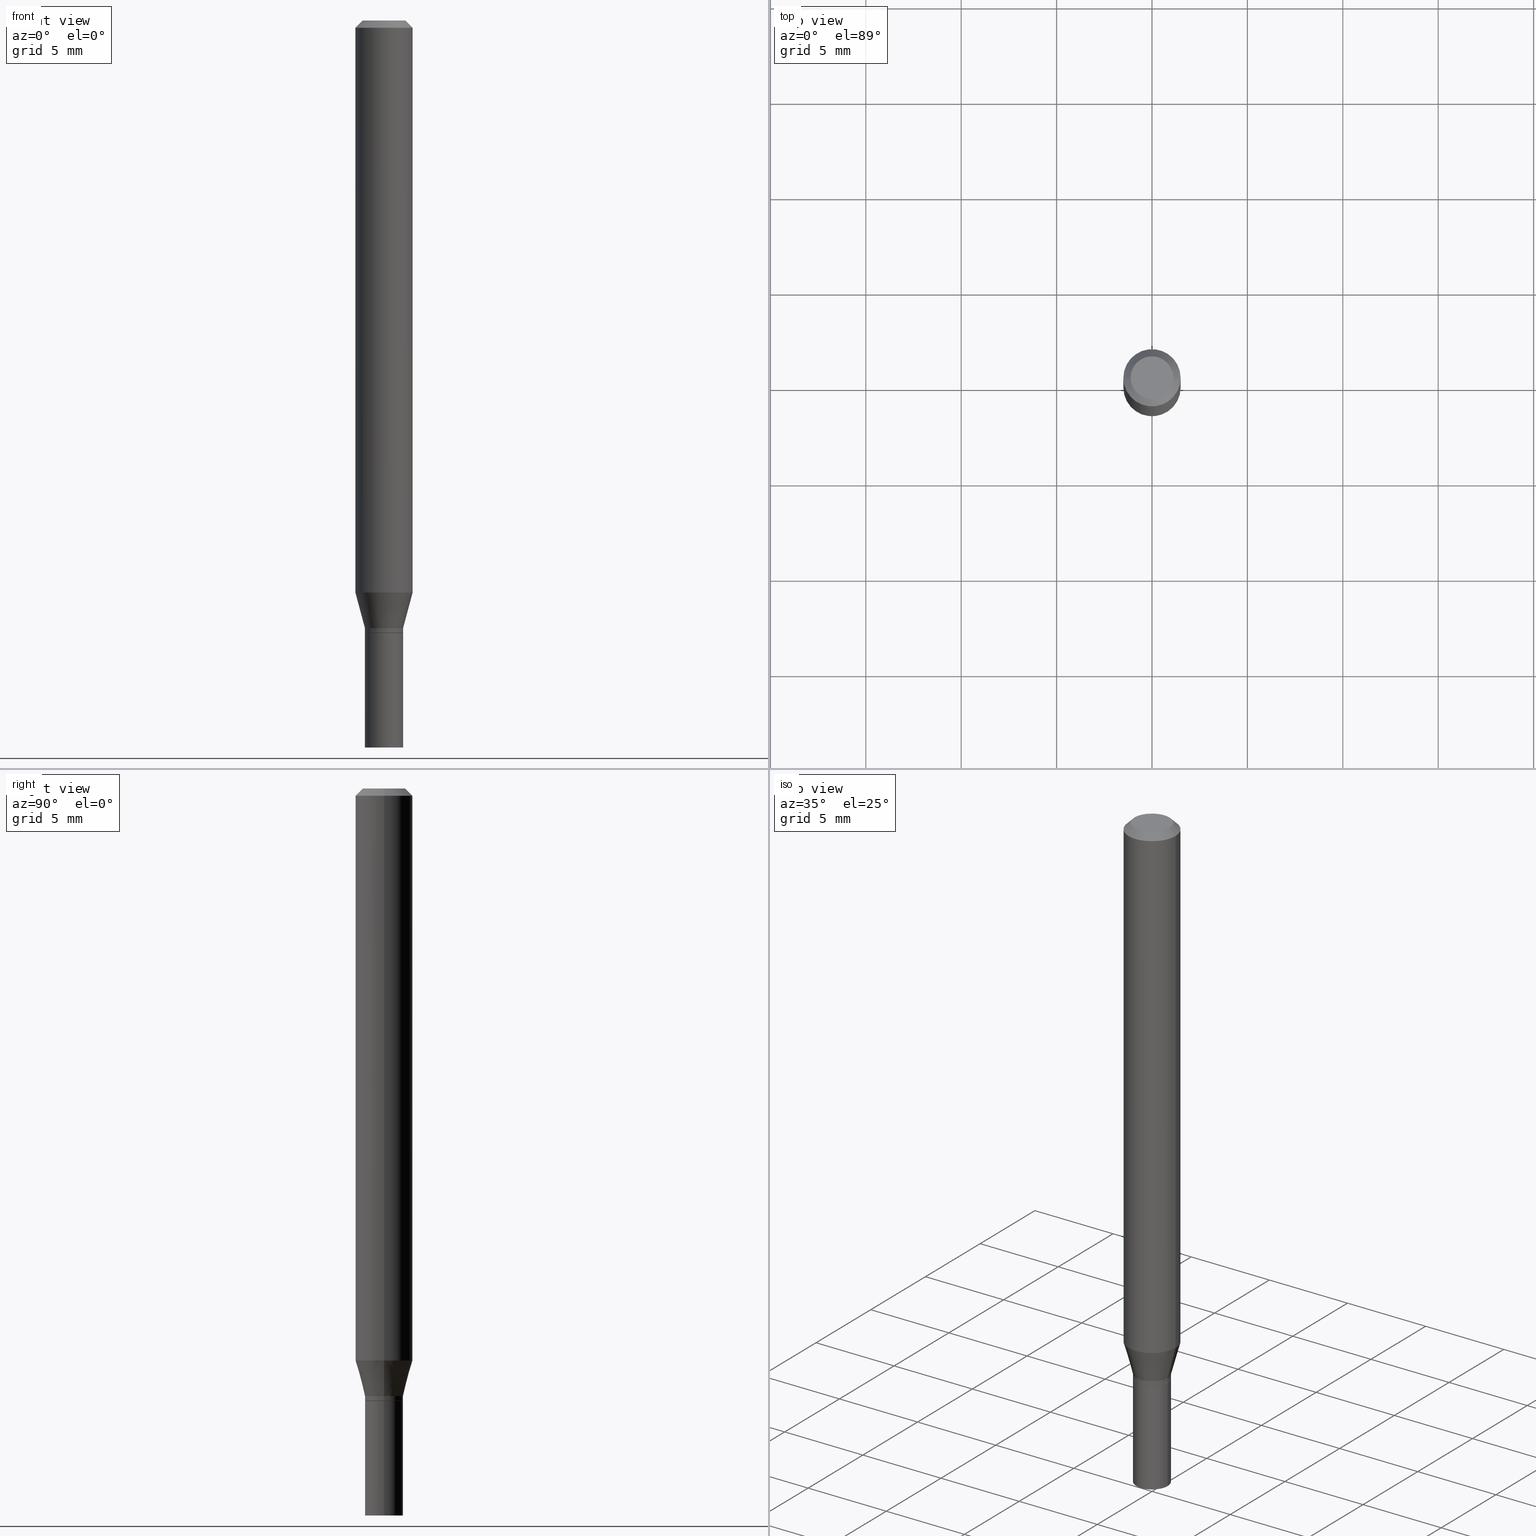
[diagram: canonical four-view strip — front | top / right | iso, engineering-drawing reading convention]
A machine part, canonical four-view strip (front | top / right | iso — engineering-drawing reading convention). The complete STEP part file that produces these views, byte-faithful:
ISO-10303-21;
HEADER;
FILE_DESCRIPTION (( 'STEP AP203' ),
    '1' );
FILE_NAME ('05073.STEP',
    '2024-03-14T17:43:40',
    ( '' ),
    ( '' ),
    'SwSTEP 2.0',
    'SolidWorks 2023',
    '' );
FILE_SCHEMA (( 'CONFIG_CONTROL_DESIGN' ));
ENDSEC;

DATA;
#1 = ORIENTED_EDGE ( 'NONE', *, *, #291, .F. ) ;
#2 = APPROVAL_STATUS ( 'not_yet_approved' ) ;
#3 = DIRECTION ( 'NONE',  ( -2.445468806185136597E-29, 3.491481338843145583E-15, 1.000000000000000000 ) ) ;
#4 = ORIENTED_EDGE ( 'NONE', *, *, #259, .T. ) ;
#5 = CARTESIAN_POINT ( 'NONE',  ( -0.05904999999999999832, 4.195754854663391478E-16, -2.904631170795521892E-30 ) ) ;
#6 = PRODUCT_RELATED_PRODUCT_CATEGORY ( 'detail', '', ( #10 ) ) ;
#7 = VERTEX_POINT ( 'NONE', #28 ) ;
#8 = DIRECTION ( 'NONE',  ( 1.000000000000000000, -6.982962677686256455E-15, 0.000000000000000000 ) ) ;
#9 = AXIS2_PLACEMENT_3D ( 'NONE', #150, #386, #209 ) ;
#10 = PRODUCT ( '05073', '05073', '', ( #311 ) ) ;
#11 = CARTESIAN_POINT ( 'NONE',  ( 0.000000000000000000, 0.000000000000000000, 0.000000000000000000 ) ) ;
#12 = DIMENSIONAL_EXPONENTS ( 1.000000000000000000, 0.000000000000000000, 0.000000000000000000, 0.000000000000000000, 0.000000000000000000, 0.000000000000000000, 0.000000000000000000 ) ;
#13 = DIRECTION ( 'NONE',  ( -2.445468806185136597E-29, 3.491481338843145583E-15, 1.000000000000000000 ) ) ;
#14 = DIRECTION ( 'NONE',  ( 1.000000000000000000, -6.982962677686265922E-15, 4.888540261209747396E-29 ) ) ;
#15 = APPLICATION_CONTEXT ( 'configuration controlled 3d designs of mechanical parts and assemblies' ) ;
#16 = AXIS2_PLACEMENT_3D ( 'NONE', #399, #74, #139 ) ;
#17 = CARTESIAN_POINT ( 'NONE',  ( 3.090583477256776013E-29, -4.412534116029967548E-15, -1.263800000000000034 ) ) ;
#18 = ORIENTED_EDGE ( 'NONE', *, *, #238, .T. ) ;
#19 = DIRECTION ( 'NONE',  ( 0.7071067811865447972, -7.319954787623246579E-15, -0.7071067811865502373 ) ) ;
#20 = ORIENTED_EDGE ( 'NONE', *, *, #404, .T. ) ;
#21 = LOCAL_TIME ( 13, 43, 40.00000000000000000, #182 ) ;
#22 = DIRECTION ( 'NONE',  ( 1.000000000000000000, -6.982962677686266711E-15, 4.876176775795935793E-29 ) ) ;
#23 = ADVANCED_FACE ( 'NONE', ( #346 ), #420, .F. ) ;
#24 = CC_DESIGN_PERSON_AND_ORGANIZATION_ASSIGNMENT ( #82, #112, ( #10 ) ) ;
#25 =( LENGTH_UNIT ( ) NAMED_UNIT ( * ) SI_UNIT ( $, .METRE. ) );
#26 = ORIENTED_EDGE ( 'NONE', *, *, #333, .F. ) ;
#27 = DIRECTION ( 'NONE',  ( 1.000000000000000000, -6.982962677686269077E-15, 0.000000000000000000 ) ) ;
#28 = CARTESIAN_POINT ( 'NONE',  ( -0.05904999999999999832, -1.667070976255876334E-15, -0.01499999999999999944 ) ) ;
#29 = LOCAL_TIME ( 13, 43, 40.00000000000000000, #316 ) ;
#30 = ORIENTED_EDGE ( 'NONE', *, *, #126, .T. ) ;
#31 = CARTESIAN_POINT ( 'NONE',  ( -0.05904999999999999832, 3.599717260347268549E-16, -0.01499999999999999944 ) ) ;
#32 = ADVANCED_FACE ( 'NONE', ( #393 ), #170, .T. ) ;
#33 = CALENDAR_DATE ( 2024, 14, 3 ) ;
#34 = CARTESIAN_POINT ( 'NONE',  ( 0.03935000000000000303, -5.512001589631673094E-15, -1.500000000000000222 ) ) ;
#35 = ADVANCED_FACE ( 'NONE', ( #115 ), #260, .T. ) ;
#36 = DATE_TIME_ROLE ( 'creation_date' ) ;
#37 = CARTESIAN_POINT ( 'NONE',  ( 0.03935000000000000303, -2.747795813669546211E-16, 1.918775561275701074E-30 ) ) ;
#38 = CIRCLE ( 'NONE', #375, 0.04404999999999999888 ) ;
#39 = ADVANCED_FACE ( 'NONE', ( #149 ), #300, .T. ) ;
#40 = ORGANIZATION ( 'UNSPECIFIED', 'UNSPECIFIED', '' ) ;
#41 = EDGE_LOOP ( 'NONE', ( #235, #54 ) ) ;
#42 = AXIS2_PLACEMENT_3D ( 'NONE', #92, #263, #155 ) ;
#43 = DIRECTION ( 'NONE',  ( 0.000000000000000000, 0.000000000000000000, 1.000000000000000000 ) ) ;
#44 = EDGE_LOOP ( 'NONE', ( #78, #20, #26, #228 ) ) ;
#45 = PERSON_AND_ORGANIZATION ( #193, #40 ) ;
#46 = DIRECTION ( 'NONE',  ( -2.445468806185136597E-29, 3.491481338843145583E-15, 1.000000000000000000 ) ) ;
#47 = CARTESIAN_POINT ( 'NONE',  ( 0.05904999999999999832, -4.533264649479156735E-15, -1.180278599090893055 ) ) ;
#48 = DIRECTION ( 'NONE',  ( -2.445468806185136877E-29, 3.491481338843145188E-15, 1.000000000000000000 ) ) ;
#49 = CARTESIAN_POINT ( 'NONE',  ( 3.089360742853683212E-29, -4.410788375360546833E-15, -1.263300000000000090 ) ) ;
#50 = SHAPE_DEFINITION_REPRESENTATION ( #88, #212 ) ;
#51 = CIRCLE ( 'NONE', #221, 0.03934999999999992670 ) ;
#52 = CARTESIAN_POINT ( 'NONE',  ( -0.03935000000000000303, -4.545279495625743861E-15, -1.500000000000000222 ) ) ;
#53 = ADVANCED_FACE ( 'NONE', ( #287 ), #441, .T. ) ;
#54 = ORIENTED_EDGE ( 'NONE', *, *, #426, .T. ) ;
#55 = CARTESIAN_POINT ( 'NONE',  ( 0.05904999999999999832, -4.123439461173740327E-16, 2.879382386107500220E-30 ) ) ;
#56 = CARTESIAN_POINT ( 'NONE',  ( -0.03934999999999993364, -4.098020736119937292E-15, -1.253800000000000248 ) ) ;
#57 = CC_DESIGN_DATE_AND_TIME_ASSIGNMENT ( #349, #36, ( #151 ) ) ;
#58 = PRODUCT_DEFINITION_FORMATION_WITH_SPECIFIED_SOURCE ( 'ANY', '', #10, .NOT_KNOWN. ) ;
#59 = LINE ( 'NONE', #56, #219 ) ;
#60 =( NAMED_UNIT ( * ) PLANE_ANGLE_UNIT ( ) SI_UNIT ( $, .RADIAN. ) );
#61 = EDGE_CURVE ( 'NONE', #70, #7, #324, .T. ) ;
#62 = DIRECTION ( 'NONE',  ( 0.7071067811865656694, -2.468850131082446387E-15, 0.7071067811865294761 ) ) ;
#63 = EDGE_CURVE ( 'NONE', #75, #462, #327, .T. ) ;
#64 = AXIS2_PLACEMENT_3D ( 'NONE', #65, #132, #298 ) ;
#65 = CARTESIAN_POINT ( 'NONE',  ( 3.668203209277704895E-29, -5.237222008264718177E-15, -1.500000000000000222 ) ) ;
#66 = CLOSED_SHELL ( 'NONE', ( #102, #23, #35, #376 ) ) ;
#67 = AXIS2_PLACEMENT_3D ( 'NONE', #125, #328, #85 ) ;
#68 = CARTESIAN_POINT ( 'NONE',  ( -0.03934999999999993364, -3.899682977007690201E-15, -1.253800000000000248 ) ) ;
#69 = FACE_OUTER_BOUND ( 'NONE', #41, .T. ) ;
#70 = VERTEX_POINT ( 'NONE', #250 ) ;
#71 = CC_DESIGN_PERSON_AND_ORGANIZATION_ASSIGNMENT ( #425, #210, ( #151 ) ) ;
#72 = ORIENTED_EDGE ( 'NONE', *, *, #218, .F. ) ;
#73 = COORDINATED_UNIVERSAL_TIME_OFFSET ( 5, 0, .BEHIND. ) ;
#74 = DIRECTION ( 'NONE',  ( -2.445468806185136597E-29, 3.491481338843145583E-15, 1.000000000000000000 ) ) ;
#75 = VERTEX_POINT ( 'NONE', #34 ) ;
#76 = APPLICATION_CONTEXT ( 'configuration controlled 3d designs of mechanical parts and assemblies' ) ;
#77 = CARTESIAN_POINT ( 'NONE',  ( 3.066128789194924468E-29, -4.377619302641535898E-15, -1.253800000000000248 ) ) ;
#78 = ORIENTED_EDGE ( 'NONE', *, *, #189, .T. ) ;
#79 = FACE_OUTER_BOUND ( 'NONE', #408, .T. ) ;
#80 = DATE_AND_TIME ( #191, #29 ) ;
#81 = APPROVAL_DATE_TIME ( #461, #231 ) ;
#82 = PERSON_AND_ORGANIZATION ( #193, #40 ) ;
#83 = FACE_OUTER_BOUND ( 'NONE', #439, .T. ) ;
#84 = APPROVAL_ROLE ( '' ) ;
#85 = DIRECTION ( 'NONE',  ( 1.000000000000000000, -6.982962677686265133E-15, 0.000000000000000000 ) ) ;
#86 = VECTOR ( 'NONE', #227, 39.37007874015748143 ) ;
#87 = VERTEX_POINT ( 'NONE', #108 ) ;
#88 = PRODUCT_DEFINITION_SHAPE ( 'NONE', 'NONE',  #151 ) ;
#89 = CARTESIAN_POINT ( 'NONE',  ( -0.03935000000000000303, 2.795985665215994447E-16, -1.935600958015305291E-30 ) ) ;
#90 = ADVANCED_FACE ( 'NONE', ( #79 ), #285, .F. ) ;
#91 = DIRECTION ( 'NONE',  ( -2.445468806185136597E-29, 3.491481338843145583E-15, 1.000000000000000000 ) ) ;
#92 = CARTESIAN_POINT ( 'NONE',  ( 3.066128789194924468E-29, -4.377619302641535898E-15, -1.253800000000000248 ) ) ;
#93 = ORIENTED_EDGE ( 'NONE', *, *, #404, .F. ) ;
#94 = CARTESIAN_POINT ( 'NONE',  ( -0.03934999999999993364, 2.795985665215989516E-16, -1.935600958015302139E-30 ) ) ;
#95 = LINE ( 'NONE', #243, #458 ) ;
#96 = CARTESIAN_POINT ( 'NONE',  ( 2.747795813669854853E-16, 0.03934999999999558989, -1.263800000000000257 ) ) ;
#97 = VECTOR ( 'NONE', #48, 39.37007874015748143 ) ;
#98 = AXIS2_PLACEMENT_3D ( 'NONE', #17, #445, #264 ) ;
#99 = FACE_OUTER_BOUND ( 'NONE', #168, .T. ) ;
#100 = ORIENTED_EDGE ( 'NONE', *, *, #464, .F. ) ;
#101 = SECURITY_CLASSIFICATION_LEVEL ( 'unclassified' ) ;
#102 = ADVANCED_FACE ( 'NONE', ( #309 ), #351, .T. ) ;
#103 = PERSON_AND_ORGANIZATION_ROLE ( 'design_supplier' ) ;
#104 = ORIENTED_EDGE ( 'NONE', *, *, #259, .F. ) ;
#105 = CARTESIAN_POINT ( 'NONE',  ( 0.04404999999999999888, -3.798447818264458600E-16, 1.187331483132502252E-16 ) ) ;
#106 = AXIS2_PLACEMENT_3D ( 'NONE', #11, #444, #22 ) ;
#107 = ORIENTED_EDGE ( 'NONE', *, *, #63, .T. ) ;
#108 = CARTESIAN_POINT ( 'NONE',  ( -0.03935000000000000303, -4.545279495625743861E-15, -1.263800000000000034 ) ) ;
#109 = ORIENTED_EDGE ( 'NONE', *, *, #152, .F. ) ;
#110 = COORDINATED_UNIVERSAL_TIME_OFFSET ( 5, 0, .BEHIND. ) ;
#111 = DIRECTION ( 'NONE',  ( 1.000000000000000000, -6.982962677686266711E-15, 4.876176775795936353E-29 ) ) ;
#112 = PERSON_AND_ORGANIZATION_ROLE ( 'design_owner' ) ;
#113 = ORIENTED_EDGE ( 'NONE', *, *, #291, .T. ) ;
#114 = DIRECTION ( 'NONE',  ( -2.445468806185136877E-29, 3.491481338843145188E-15, 1.000000000000000000 ) ) ;
#115 = FACE_OUTER_BOUND ( 'NONE', #161, .T. ) ;
#116 = DIRECTION ( 'NONE',  ( 1.000000000000000000, -6.982962677686265133E-15, 0.000000000000000000 ) ) ;
#117 = ADVANCED_FACE ( 'NONE', ( #185 ), #157, .T. ) ;
#118 = ORIENTED_EDGE ( 'NONE', *, *, #63, .F. ) ;
#119 = CARTESIAN_POINT ( 'NONE',  ( -0.03934999999999992670, -4.131189808838948226E-15, -1.263300000000000090 ) ) ;
#120 = AXIS2_PLACEMENT_3D ( 'NONE', #409, #403, #154 ) ;
#121 = EDGE_CURVE ( 'NONE', #7, #286, #355, .T. ) ;
#122 = CONICAL_SURFACE ( 'NONE', #98, 0.03885000000000000259, 0.7853981633974739252 ) ;
#123 = CC_DESIGN_PERSON_AND_ORGANIZATION_ASSIGNMENT ( #255, #103, ( #58 ) ) ;
#124 = FACE_OUTER_BOUND ( 'NONE', #450, .T. ) ;
#125 = CARTESIAN_POINT ( 'NONE',  ( 2.886334496684671915E-29, -4.120920703361783392E-15, -1.180278599090893055 ) ) ;
#126 = EDGE_CURVE ( 'NONE', #342, #353, #190, .T. ) ;
#127 = CARTESIAN_POINT ( 'NONE',  ( -0.04404999999999999888, 3.337856159934036604E-16, 1.187331483132455906E-16 ) ) ;
#128 = CARTESIAN_POINT ( 'NONE',  ( 0.000000000000000000, 0.000000000000000000, 0.000000000000000000 ) ) ;
#129 = VERTEX_POINT ( 'NONE', #47 ) ;
#130 = DIRECTION ( 'NONE',  ( -2.445468806185136597E-29, 3.491481338843145583E-15, 1.000000000000000000 ) ) ;
#131 = CARTESIAN_POINT ( 'NONE',  ( -0.03885000000000000259, -4.133839036013058638E-15, -1.263800000000000034 ) ) ;
#132 = DIRECTION ( 'NONE',  ( -2.445468806185136597E-29, 3.491481338843145583E-15, 1.000000000000000000 ) ) ;
#133 = CC_DESIGN_PERSON_AND_ORGANIZATION_ASSIGNMENT ( #394, #459, ( #178 ) ) ;
#134 = CIRCLE ( 'NONE', #268, 0.03935000000000000303 ) ;
#135 = PERSON_AND_ORGANIZATION ( #193, #40 ) ;
#136 = ORIENTED_EDGE ( 'NONE', *, *, #238, .F. ) ;
#137 = ORIENTED_EDGE ( 'NONE', *, *, #218, .T. ) ;
#138 = CALENDAR_DATE ( 2024, 14, 3 ) ;
#139 = DIRECTION ( 'NONE',  ( 1.000000000000000000, -6.982962677686256455E-15, 0.000000000000000000 ) ) ;
#140 = EDGE_LOOP ( 'NONE', ( #257, #455 ) ) ;
#141 = LOCAL_TIME ( 13, 43, 40.00000000000000000, #73 ) ;
#142 = AXIS2_PLACEMENT_3D ( 'NONE', #146, #434, #217 ) ;
#143 = AXIS2_PLACEMENT_3D ( 'NONE', #294, #188, #363 ) ;
#144 = ORIENTED_EDGE ( 'NONE', *, *, #400, .F. ) ;
#145 = PERSON_AND_ORGANIZATION ( #193, #40 ) ;
#146 = CARTESIAN_POINT ( 'NONE',  ( 3.075995059520799729E-16, 0.04404999999999999888, -9.443317881941664879E-17 ) ) ;
#147 = EDGE_LOOP ( 'NONE', ( #312, #336, #237, #72 ) ) ;
#148 = CALENDAR_DATE ( 2024, 14, 3 ) ;
#149 = FACE_OUTER_BOUND ( 'NONE', #147, .T. ) ;
#150 = CARTESIAN_POINT ( 'NONE',  ( 3.090583477256776013E-29, -4.412534116029967548E-15, -1.263800000000000034 ) ) ;
#151 = PRODUCT_DEFINITION ( 'UNKNOWN', '', #58, #418 ) ;
#152 = EDGE_CURVE ( 'NONE', #460, #304, #295, .T. ) ;
#153 = AXIS2_PLACEMENT_3D ( 'NONE', #308, #279, #433 ) ;
#154 = DIRECTION ( 'NONE',  ( -1.000000000000000000, 6.982962677686266711E-15, 0.000000000000000000 ) ) ;
#155 = DIRECTION ( 'NONE',  ( 1.000000000000000000, -6.982962677686256455E-15, 0.000000000000000000 ) ) ;
#156 = CARTESIAN_POINT ( 'NONE',  ( 3.668203209277705088E-31, -5.237222008264718399E-17, -0.01499999999999999944 ) ) ;
#157 = CONICAL_SURFACE ( 'NONE', #16, 0.03934999999999993364, 0.2617993877991497964 ) ;
#159 = CONICAL_SURFACE ( 'NONE', #203, 0.05904999999999999832, 0.7853981633974445042 ) ;
#158 = APPROVAL ( #276, 'UNSPECIFIED' ) ;
#160 = DIRECTION ( 'NONE',  ( -2.445468806185136877E-29, 3.491481338843145188E-15, 1.000000000000000000 ) ) ;
#161 = EDGE_LOOP ( 'NONE', ( #358, #253, #107, #216 ) ) ;
#162 = LINE ( 'NONE', #297, #301 ) ;
#163 = APPLICATION_PROTOCOL_DEFINITION ( 'international standard', 'config_control_design', 1994, #76 ) ;
#164 = ORIENTED_EDGE ( 'NONE', *, *, #265, .T. ) ;
#165 = CIRCLE ( 'NONE', #315, 0.03935000000000000303 ) ;
#166 = FACE_OUTER_BOUND ( 'NONE', #284, .T. ) ;
#167 =( NAMED_UNIT ( * ) SI_UNIT ( $, .STERADIAN. ) SOLID_ANGLE_UNIT ( ) );
#168 = EDGE_LOOP ( 'NONE', ( #395, #137, #18, #379 ) ) ;
#169 = DIRECTION ( 'NONE',  ( 1.000000000000000000, -6.982962677686265922E-15, 4.888540261209747396E-29 ) ) ;
#170 = CONICAL_SURFACE ( 'NONE', #412, 0.03885000000000000259, 0.7853981633974739252 ) ;
#171 = EDGE_LOOP ( 'NONE', ( #234, #427, #247, #174 ) ) ;
#172 = ADVANCED_FACE ( 'NONE', ( #348 ), #391, .F. ) ;
#173 = EDGE_CURVE ( 'NONE', #368, #7, #347, .T. ) ;
#174 = ORIENTED_EDGE ( 'NONE', *, *, #121, .T. ) ;
#175 = DIRECTION ( 'NONE',  ( 1.000000000000000000, 0.000000000000000000, 0.000000000000000000 ) ) ;
#176 = VECTOR ( 'NONE', #378, 39.37007874015748143 ) ;
#177 = COORDINATED_UNIVERSAL_TIME_OFFSET ( 5, 0, .BEHIND. ) ;
#178 = SECURITY_CLASSIFICATION ( '', '', #101 ) ;
#179 = CARTESIAN_POINT ( 'NONE',  ( 0.000000000000000000, 0.000000000000000000, 0.000000000000000000 ) ) ;
#180 = CIRCLE ( 'NONE', #42, 0.03934999999999993364 ) ;
#181 = ORIENTED_EDGE ( 'NONE', *, *, #61, .T. ) ;
#182 = COORDINATED_UNIVERSAL_TIME_OFFSET ( 5, 0, .BEHIND. ) ;
#183 = CARTESIAN_POINT ( 'NONE',  ( 3.090583477256776013E-29, -4.412534116029967548E-15, -1.263800000000000034 ) ) ;
#184 = VERTEX_POINT ( 'NONE', #105 ) ;
#185 = FACE_OUTER_BOUND ( 'NONE', #322, .T. ) ;
#186 = DIRECTION ( 'NONE',  ( -2.445468806185136597E-29, 3.491481338843145583E-15, 1.000000000000000000 ) ) ;
#187 = DIRECTION ( 'NONE',  ( -2.445468806185136597E-29, 3.491481338843145583E-15, 1.000000000000000000 ) ) ;
#188 = DIRECTION ( 'NONE',  ( -2.445468806185136597E-29, 3.491481338843145583E-15, 1.000000000000000000 ) ) ;
#189 = EDGE_CURVE ( 'NONE', #326, #423, #241, .T. ) ;
#190 = CIRCLE ( 'NONE', #356, 0.03934999999999992670 ) ;
#191 = CALENDAR_DATE ( 2024, 14, 3 ) ;
#192 = DIRECTION ( 'NONE',  ( 1.000000000000000000, -6.982962677686269077E-15, 0.000000000000000000 ) ) ;
#193 = PERSON ( 'UNSPECIFIED', 'UNSPECIFIED', 'UNSPECIFIED', ('UNSPECIFIED'), ('UNSPECIFIED'), ('UNSPECIFIED') ) ;
#194 = CARTESIAN_POINT ( 'NONE',  ( 3.090583477256776013E-29, -4.412534116029967548E-15, -1.263800000000000034 ) ) ;
#195 = DIRECTION ( 'NONE',  ( -0.2588190451025211281, 5.211531920934548675E-15, 0.9659258262890682012 ) ) ;
#196 = AXIS2_PLACEMENT_3D ( 'NONE', #128, #456, #244 ) ;
#197 = CARTESIAN_POINT ( 'NONE',  ( 0.05904999999999999832, -4.574846268510561447E-16, -0.01499999999999999944 ) ) ;
#198 = LENGTH_MEASURE_WITH_UNIT ( LENGTH_MEASURE( 0.02539999999999999897 ), #25 );
#199 = ORIENTED_EDGE ( 'NONE', *, *, #252, .F. ) ;
#200 = EDGE_CURVE ( 'NONE', #245, #87, #406, .T. ) ;
#201 = LOCAL_TIME ( 13, 43, 40.00000000000000000, #177 ) ;
#202 = AXIS2_PLACEMENT_3D ( 'NONE', #179, #438, #111 ) ;
#203 = AXIS2_PLACEMENT_3D ( 'NONE', #156, #266, #258 ) ;
#204 = LINE ( 'NONE', #340, #176 ) ;
#205 = CARTESIAN_POINT ( 'NONE',  ( 0.03935000000000000303, -4.687313697396922464E-15, -1.263800000000000034 ) ) ;
#206 = DIRECTION ( 'NONE',  ( 2.438088387897960049E-29, -3.491481338843145188E-15, -1.000000000000000000 ) ) ;
#207 = CC_DESIGN_APPROVAL ( #158, ( #178 ) ) ;
#208 = ORIENTED_EDGE ( 'NONE', *, *, #416, .F. ) ;
#209 = DIRECTION ( 'NONE',  ( 1.000000000000000000, -6.982962677686265922E-15, 4.876176775795935793E-29 ) ) ;
#210 = PERSON_AND_ORGANIZATION_ROLE ( 'creator' ) ;
#211 = CC_DESIGN_DATE_AND_TIME_ASSIGNMENT ( #385, #440, ( #178 ) ) ;
#212 = ADVANCED_BREP_SHAPE_REPRESENTATION ( '05073', ( #435, #430, #329 ), #272 ) ;
#213 = ORIENTED_EDGE ( 'NONE', *, *, #437, .F. ) ;
#214 = APPROVAL_STATUS ( 'not_yet_approved' ) ;
#215 = DIRECTION ( 'NONE',  ( 1.000000000000000000, -6.982962677686256455E-15, 0.000000000000000000 ) ) ;
#216 = ORIENTED_EDGE ( 'NONE', *, *, #426, .F. ) ;
#217 = DIRECTION ( 'NONE',  ( -1.000000000000000000, 6.982962677686265922E-15, -4.876176775795935793E-29 ) ) ;
#218 = EDGE_CURVE ( 'NONE', #70, #129, #422, .T. ) ;
#219 = VECTOR ( 'NONE', #195, 39.37007874015748143 ) ;
#220 = ORIENTED_EDGE ( 'NONE', *, *, #281, .F. ) ;
#221 = AXIS2_PLACEMENT_3D ( 'NONE', #49, #335, #337 ) ;
#222 = CARTESIAN_POINT ( 'NONE',  ( 0.000000000000000000, 0.000000000000000000, 0.000000000000000000 ) ) ;
#223 = ORIENTED_EDGE ( 'NONE', *, *, #233, .T. ) ;
#224 = CARTESIAN_POINT ( 'NONE',  ( 0.05904999999999999832, -4.647161662000212105E-16, -0.01499999999999999944 ) ) ;
#225 = DIRECTION ( 'NONE',  ( -2.445468806185136597E-29, 3.491481338843145583E-15, 1.000000000000000000 ) ) ;
#226 = AXIS2_PLACEMENT_3D ( 'NONE', #367, #91, #330 ) ;
#227 = DIRECTION ( 'NONE',  ( -2.445468806185136877E-29, 3.491481338843145188E-15, 1.000000000000000000 ) ) ;
#228 = ORIENTED_EDGE ( 'NONE', *, *, #364, .F. ) ;
#229 = LINE ( 'NONE', #55, #86 ) ;
#230 = FACE_OUTER_BOUND ( 'NONE', #171, .T. ) ;
#231 = APPROVAL ( #214, 'UNSPECIFIED' ) ;
#232 = VECTOR ( 'NONE', #288, 39.37007874015748143 ) ;
#233 = EDGE_CURVE ( 'NONE', #368, #184, #319, .T. ) ;
#234 = ORIENTED_EDGE ( 'NONE', *, *, #334, .F. ) ;
#235 = ORIENTED_EDGE ( 'NONE', *, *, #281, .T. ) ;
#236 = CARTESIAN_POINT ( 'NONE',  ( 3.668203209277705088E-31, -5.237222008264718399E-17, -0.01499999999999999944 ) ) ;
#237 = ORIENTED_EDGE ( 'NONE', *, *, #454, .T. ) ;
#238 = EDGE_CURVE ( 'NONE', #129, #286, #229, .T. ) ;
#239 = CARTESIAN_POINT ( 'NONE',  ( 0.03885000000000000259, -4.683822216058078668E-15, -1.263800000000000034 ) ) ;
#240 = UNCERTAINTY_MEASURE_WITH_UNIT (LENGTH_MEASURE( 1.000000000000000082E-05 ), #267, 'distance_accuracy_value', 'NONE');
#241 = CIRCLE ( 'NONE', #226, 0.03885000000000000259 ) ;
#242 = CIRCLE ( 'NONE', #465, 0.03885000000000000259 ) ;
#243 = CARTESIAN_POINT ( 'NONE',  ( -0.03885000000000000259, -4.136488263187169051E-15, -1.263800000000000034 ) ) ;
#244 = DIRECTION ( 'NONE',  ( 1.000000000000000000, -6.982962677686266711E-15, 4.876176775795936353E-29 ) ) ;
#245 = VERTEX_POINT ( 'NONE', #52 ) ;
#246 = APPROVAL_DATE_TIME ( #436, #369 ) ;
#247 = ORIENTED_EDGE ( 'NONE', *, *, #173, .T. ) ;
#248 = CC_DESIGN_PERSON_AND_ORGANIZATION_ASSIGNMENT ( #45, #305, ( #58 ) ) ;
#249 = CONICAL_SURFACE ( 'NONE', #120, 0.05904999999999999832, 0.7853981633974445042 ) ;
#250 = CARTESIAN_POINT ( 'NONE',  ( -0.05904999999999999832, -3.701345217895443899E-15, -1.180278599090893055 ) ) ;
#251 = ORIENTED_EDGE ( 'NONE', *, *, #334, .T. ) ;
#252 = EDGE_CURVE ( 'NONE', #75, #245, #274, .T. ) ;
#253 = ORIENTED_EDGE ( 'NONE', *, *, #416, .T. ) ;
#254 = ORIENTED_EDGE ( 'NONE', *, *, #333, .T. ) ;
#255 = PERSON_AND_ORGANIZATION ( #193, #40 ) ;
#256 = DIRECTION ( 'NONE',  ( 1.000000000000000000, -6.982962677686266711E-15, 0.000000000000000000 ) ) ;
#257 = ORIENTED_EDGE ( 'NONE', *, *, #189, .F. ) ;
#258 = DIRECTION ( 'NONE',  ( -1.000000000000000000, 6.982962677686266711E-15, 0.000000000000000000 ) ) ;
#259 = EDGE_CURVE ( 'NONE', #129, #70, #377, .T. ) ;
#260 = CYLINDRICAL_SURFACE ( 'NONE', #273, 0.03935000000000000303 ) ;
#261 = CARTESIAN_POINT ( 'NONE',  ( 3.090583477256776013E-29, -4.412534116029967548E-15, -1.263800000000000034 ) ) ;
#262 = AXIS2_PLACEMENT_3D ( 'NONE', #344, #374, #417 ) ;
#263 = DIRECTION ( 'NONE',  ( -2.445468806185136597E-29, 3.491481338843145583E-15, 1.000000000000000000 ) ) ;
#264 = DIRECTION ( 'NONE',  ( 1.000000000000000000, -6.982962677686256455E-15, 0.000000000000000000 ) ) ;
#265 = EDGE_CURVE ( 'NONE', #423, #326, #242, .T. ) ;
#266 = DIRECTION ( 'NONE',  ( 2.445468806185136597E-29, -3.491481338843145583E-15, -1.000000000000000000 ) ) ;
#267 =( CONVERSION_BASED_UNIT ( 'INCH', #198 ) LENGTH_UNIT ( ) NAMED_UNIT ( #12 ) );
#268 = AXIS2_PLACEMENT_3D ( 'NONE', #261, #225, #192 ) ;
#269 = CYLINDRICAL_SURFACE ( 'NONE', #262, 0.05904999999999999832 ) ;
#270 = DIRECTION ( 'NONE',  ( -2.445468806185136877E-29, 3.491481338843145188E-15, 1.000000000000000000 ) ) ;
#271 = DIRECTION ( 'NONE',  ( -2.445468806185136597E-29, 3.491481338843145583E-15, 1.000000000000000000 ) ) ;
#272 =( GEOMETRIC_REPRESENTATION_CONTEXT ( 3 ) GLOBAL_UNCERTAINTY_ASSIGNED_CONTEXT ( ( #240 ) ) GLOBAL_UNIT_ASSIGNED_CONTEXT ( ( #267, #60, #167 ) ) REPRESENTATION_CONTEXT ( 'NONE', 'WORKASPACE' ) );
#273 = AXIS2_PLACEMENT_3D ( 'NONE', #321, #3, #359 ) ;
#274 = CIRCLE ( 'NONE', #143, 0.03935000000000000303 ) ;
#275 = PLANE ( 'NONE',  #352 ) ;
#276 = APPROVAL_STATUS ( 'not_yet_approved' ) ;
#277 = ORIENTED_EDGE ( 'NONE', *, *, #200, .T. ) ;
#278 = APPROVAL_ROLE ( '' ) ;
#279 = DIRECTION ( 'NONE',  ( -2.438088387897960049E-29, 3.491481338843145188E-15, 1.000000000000000000 ) ) ;
#280 = CARTESIAN_POINT ( 'NONE',  ( 3.089360742853683212E-29, -4.410788375360546833E-15, -1.263300000000000090 ) ) ;
#281 = EDGE_CURVE ( 'NONE', #462, #87, #134, .T. ) ;
#282 = AXIS2_PLACEMENT_3D ( 'NONE', #222, #46, #350 ) ;
#283 = CIRCLE ( 'NONE', #64, 0.03935000000000000303 ) ;
#284 = EDGE_LOOP ( 'NONE', ( #4, #181, #144, #136 ) ) ;
#285 = PLANE ( 'NONE',  #142 ) ;
#286 = VERTEX_POINT ( 'NONE', #224 ) ;
#287 = FACE_OUTER_BOUND ( 'NONE', #307, .T. ) ;
#288 = DIRECTION ( 'NONE',  ( -2.445468806185136877E-29, 3.491481338843145188E-15, 1.000000000000000000 ) ) ;
#289 = LINE ( 'NONE', #197, #432 ) ;
#290 = CARTESIAN_POINT ( 'NONE',  ( 0.03885000000000000259, -4.683822216058078668E-15, -1.263800000000000034 ) ) ;
#291 = EDGE_CURVE ( 'NONE', #304, #460, #180, .T. ) ;
#292 = ORIENTED_EDGE ( 'NONE', *, *, #341, .T. ) ;
#293 = VECTOR ( 'NONE', #270, 39.37007874015748143 ) ;
#294 = CARTESIAN_POINT ( 'NONE',  ( 3.668203209277704895E-29, -5.237222008264718177E-15, -1.500000000000000222 ) ) ;
#295 = CIRCLE ( 'NONE', #407, 0.03934999999999993364 ) ;
#296 = DIRECTION ( 'NONE',  ( -2.445468806185136597E-29, 3.491481338843145583E-15, 1.000000000000000000 ) ) ;
#297 = CARTESIAN_POINT ( 'NONE',  ( 0.03934999999999993364, -2.747795813669541281E-16, 1.918775561275697570E-30 ) ) ;
#298 = DIRECTION ( 'NONE',  ( 1.000000000000000000, -6.982962677686269077E-15, 0.000000000000000000 ) ) ;
#299 = APPROVAL_PERSON_ORGANIZATION ( #145, #369, #278 ) ;
#300 = CONICAL_SURFACE ( 'NONE', #431, 0.03934999999999993364, 0.2617993877991497964 ) ;
#301 = VECTOR ( 'NONE', #114, 39.37007874015748143 ) ;
#302 = ORIENTED_EDGE ( 'NONE', *, *, #173, .F. ) ;
#303 = CC_DESIGN_SECURITY_CLASSIFICATION ( #178, ( #58 ) ) ;
#304 = VERTEX_POINT ( 'NONE', #447 ) ;
#305 = PERSON_AND_ORGANIZATION_ROLE ( 'creator' ) ;
#306 = ADVANCED_FACE ( 'NONE', ( #124 ), #159, .T. ) ;
#307 = EDGE_LOOP ( 'NONE', ( #100, #30, #292, #109 ) ) ;
#308 = CARTESIAN_POINT ( 'NONE',  ( 3.576687321579069994E-29, -5.368277968210015545E-15, -1.500000000000000222 ) ) ;
#309 = FACE_OUTER_BOUND ( 'NONE', #382, .T. ) ;
#310 = ORIENTED_EDGE ( 'NONE', *, *, #364, .T. ) ;
#311 = MECHANICAL_CONTEXT ( 'NONE', #76, 'mechanical' ) ;
#312 = ORIENTED_EDGE ( 'NONE', *, *, #313, .F. ) ;
#313 = EDGE_CURVE ( 'NONE', #460, #70, #59, .T. ) ;
#314 = ADVANCED_FACE ( 'NONE', ( #230 ), #249, .T. ) ;
#315 = AXIS2_PLACEMENT_3D ( 'NONE', #373, #452, #27 ) ;
#316 = COORDINATED_UNIVERSAL_TIME_OFFSET ( 5, 0, .BEHIND. ) ;
#317 = LOCAL_TIME ( 13, 43, 40.00000000000000000, #110 ) ;
#318 = CLOSED_SHELL ( 'NONE', ( #360, #331, #306, #402, #117, #39, #383, #314, #90, #172, #32, #53 ) ) ;
#319 = CIRCLE ( 'NONE', #421, 0.04404999999999999888 ) ;
#320 = DIRECTION ( 'NONE',  ( -2.445468806185136597E-29, 3.491481338843145583E-15, 1.000000000000000000 ) ) ;
#321 = CARTESIAN_POINT ( 'NONE',  ( 0.000000000000000000, 0.000000000000000000, 0.000000000000000000 ) ) ;
#322 = EDGE_LOOP ( 'NONE', ( #113, #384, #104, #415 ) ) ;
#323 = DIRECTION ( 'NONE',  ( 1.000000000000000000, -6.982962677686258033E-15, 0.000000000000000000 ) ) ;
#324 = LINE ( 'NONE', #5, #97 ) ;
#325 = CARTESIAN_POINT ( 'NONE',  ( 3.668203209277705088E-31, -5.237222008264718399E-17, -0.01499999999999999944 ) ) ;
#326 = VERTEX_POINT ( 'NONE', #290 ) ;
#327 = LINE ( 'NONE', #37, #232 ) ;
#328 = DIRECTION ( 'NONE',  ( -2.445468806185136597E-29, 3.491481338843145583E-15, 1.000000000000000000 ) ) ;
#329 = AXIS2_PLACEMENT_3D ( 'NONE', #390, #43, #175 ) ;
#330 = DIRECTION ( 'NONE',  ( 1.000000000000000000, -6.982962677686256455E-15, 0.000000000000000000 ) ) ;
#331 = ADVANCED_FACE ( 'NONE', ( #410 ), #122, .T. ) ;
#332 = CARTESIAN_POINT ( 'NONE',  ( 2.886334496684671915E-29, -4.120920703361783392E-15, -1.180278599090893055 ) ) ;
#333 = EDGE_CURVE ( 'NONE', #353, #342, #51, .T. ) ;
#334 = EDGE_CURVE ( 'NONE', #184, #286, #289, .T. ) ;
#335 = DIRECTION ( 'NONE',  ( -2.445468806185136597E-29, 3.491481338843145583E-15, 1.000000000000000000 ) ) ;
#336 = ORIENTED_EDGE ( 'NONE', *, *, #152, .T. ) ;
#337 = DIRECTION ( 'NONE',  ( 1.000000000000000000, -6.982962677686258033E-15, 0.000000000000000000 ) ) ;
#338 = DIRECTION ( 'NONE',  ( -1.000000000000000000, 6.982962677686265922E-15, -4.876176775795935793E-29 ) ) ;
#339 = VECTOR ( 'NONE', #160, 39.37007874015748143 ) ;
#340 = CARTESIAN_POINT ( 'NONE',  ( 0.03934999999999993364, -4.652398884008490026E-15, -1.253800000000000248 ) ) ;
#341 = EDGE_CURVE ( 'NONE', #353, #304, #162, .T. ) ;
#342 = VERTEX_POINT ( 'NONE', #119 ) ;
#343 = ORIENTED_EDGE ( 'NONE', *, *, #464, .T. ) ;
#344 = CARTESIAN_POINT ( 'NONE',  ( 0.000000000000000000, 0.000000000000000000, 0.000000000000000000 ) ) ;
#345 = ORIENTED_EDGE ( 'NONE', *, *, #126, .F. ) ;
#346 = FACE_OUTER_BOUND ( 'NONE', #428, .T. ) ;
#347 = LINE ( 'NONE', #31, #389 ) ;
#348 = FACE_OUTER_BOUND ( 'NONE', #140, .T. ) ;
#349 = DATE_AND_TIME ( #33, #317 ) ;
#350 = DIRECTION ( 'NONE',  ( 1.000000000000000000, -6.982962677686266711E-15, 4.876176775795935793E-29 ) ) ;
#351 = CYLINDRICAL_SURFACE ( 'NONE', #202, 0.03935000000000000303 ) ;
#352 = AXIS2_PLACEMENT_3D ( 'NONE', #96, #206, #338 ) ;
#353 = VERTEX_POINT ( 'NONE', #401 ) ;
#354 = CC_DESIGN_APPROVAL ( #369, ( #58 ) ) ;
#355 = CIRCLE ( 'NONE', #411, 0.05904999999999999832 ) ;
#356 = AXIS2_PLACEMENT_3D ( 'NONE', #280, #396, #323 ) ;
#357 = CALENDAR_DATE ( 2024, 14, 3 ) ;
#358 = ORIENTED_EDGE ( 'NONE', *, *, #200, .F. ) ;
#359 = DIRECTION ( 'NONE',  ( 1.000000000000000000, -6.982962677686266711E-15, 4.876176775795936353E-29 ) ) ;
#360 = ADVANCED_FACE ( 'NONE', ( #83 ), #361, .T. ) ;
#361 = CYLINDRICAL_SURFACE ( 'NONE', #106, 0.03934999999999993364 ) ;
#362 = APPROVAL_DATE_TIME ( #80, #158 ) ;
#363 = DIRECTION ( 'NONE',  ( 1.000000000000000000, -6.982962677686269077E-15, 0.000000000000000000 ) ) ;
#364 = EDGE_CURVE ( 'NONE', #326, #353, #419, .T. ) ;
#365 = AXIS2_PLACEMENT_3D ( 'NONE', #236, #271, #380 ) ;
#366 = ORIENTED_EDGE ( 'NONE', *, *, #437, .T. ) ;
#367 = CARTESIAN_POINT ( 'NONE',  ( 3.090583477256776013E-29, -4.412534116029967548E-15, -1.263800000000000034 ) ) ;
#368 = VERTEX_POINT ( 'NONE', #127 ) ;
#369 = APPROVAL ( #2, 'UNSPECIFIED' ) ;
#370 = DIRECTION ( 'NONE',  ( 1.000000000000000000, -6.982962677686256455E-15, 0.000000000000000000 ) ) ;
#371 = CARTESIAN_POINT ( 'NONE',  ( -2.903582104602009454E-45, 4.145545716378002760E-31, 1.187331483132478339E-16 ) ) ;
#372 = DIRECTION ( 'NONE',  ( -0.7071067811865656694, 7.493145998870420424E-15, 0.7071067811865294761 ) ) ;
#373 = CARTESIAN_POINT ( 'NONE',  ( 3.090583477256776013E-29, -4.412534116029967548E-15, -1.263800000000000034 ) ) ;
#374 = DIRECTION ( 'NONE',  ( -2.445468806185136597E-29, 3.491481338843145583E-15, 1.000000000000000000 ) ) ;
#375 = AXIS2_PLACEMENT_3D ( 'NONE', #413, #130, #169 ) ;
#376 = ADVANCED_FACE ( 'NONE', ( #69 ), #275, .F. ) ;
#377 = CIRCLE ( 'NONE', #67, 0.05904999999999999832 ) ;
#378 = DIRECTION ( 'NONE',  ( 0.2588190451025211281, 1.565188264969623940E-15, 0.9659258262890682012 ) ) ;
#379 = ORIENTED_EDGE ( 'NONE', *, *, #121, .F. ) ;
#380 = DIRECTION ( 'NONE',  ( 1.000000000000000000, -6.982962677686266711E-15, 0.000000000000000000 ) ) ;
#381 = ORIENTED_EDGE ( 'NONE', *, *, #341, .F. ) ;
#382 = EDGE_LOOP ( 'NONE', ( #457, #277, #220, #118 ) ) ;
#383 = ADVANCED_FACE ( 'NONE', ( #99 ), #424, .T. ) ;
#384 = ORIENTED_EDGE ( 'NONE', *, *, #313, .T. ) ;
#385 = DATE_AND_TIME ( #148, #21 ) ;
#386 = DIRECTION ( 'NONE',  ( -2.438088387897960049E-29, 3.491481338843145188E-15, 1.000000000000000000 ) ) ;
#387 = CC_DESIGN_APPROVAL ( #231, ( #151 ) ) ;
#388 = EDGE_LOOP ( 'NONE', ( #93, #164, #310, #345 ) ) ;
#389 = VECTOR ( 'NONE', #429, 39.37007874015748143 ) ;
#390 = CARTESIAN_POINT ( 'NONE',  ( 0.000000000000000000, 0.000000000000000000, 0.000000000000000000 ) ) ;
#391 = PLANE ( 'NONE',  #9 ) ;
#392 = PERSON_AND_ORGANIZATION ( #193, #40 ) ;
#393 = FACE_OUTER_BOUND ( 'NONE', #388, .T. ) ;
#394 = PERSON_AND_ORGANIZATION ( #193, #40 ) ;
#395 = ORIENTED_EDGE ( 'NONE', *, *, #61, .F. ) ;
#396 = DIRECTION ( 'NONE',  ( -2.445468806185136597E-29, 3.491481338843145583E-15, 1.000000000000000000 ) ) ;
#397 = APPROVAL_ROLE ( '' ) ;
#398 = DIRECTION ( 'NONE',  ( -2.445468806185136597E-29, 3.491481338843145583E-15, 1.000000000000000000 ) ) ;
#399 = CARTESIAN_POINT ( 'NONE',  ( 3.066128789194924468E-29, -4.377619302641535898E-15, -1.253800000000000248 ) ) ;
#400 = EDGE_CURVE ( 'NONE', #286, #7, #446, .T. ) ;
#401 = CARTESIAN_POINT ( 'NONE',  ( 0.03934999999999992670, -4.685567956727500172E-15, -1.263300000000000090 ) ) ;
#402 = ADVANCED_FACE ( 'NONE', ( #166 ), #269, .T. ) ;
#403 = DIRECTION ( 'NONE',  ( 2.445468806185136597E-29, -3.491481338843145583E-15, -1.000000000000000000 ) ) ;
#404 = EDGE_CURVE ( 'NONE', #423, #342, #95, .T. ) ;
#405 = APPROVAL_PERSON_ORGANIZATION ( #392, #231, #397 ) ;
#406 = LINE ( 'NONE', #89, #339 ) ;
#407 = AXIS2_PLACEMENT_3D ( 'NONE', #442, #187, #8 ) ;
#408 = EDGE_LOOP ( 'NONE', ( #223, #366 ) ) ;
#409 = CARTESIAN_POINT ( 'NONE',  ( 3.668203209277705088E-31, -5.237222008264718399E-17, -0.01499999999999999944 ) ) ;
#410 = FACE_OUTER_BOUND ( 'NONE', #44, .T. ) ;
#411 = AXIS2_PLACEMENT_3D ( 'NONE', #325, #320, #256 ) ;
#412 = AXIS2_PLACEMENT_3D ( 'NONE', #183, #186, #443 ) ;
#413 = CARTESIAN_POINT ( 'NONE',  ( -2.903582104602009454E-45, 4.145545716378002760E-31, 1.187331483132478339E-16 ) ) ;
#414 = ORIENTED_EDGE ( 'NONE', *, *, #400, .T. ) ;
#415 = ORIENTED_EDGE ( 'NONE', *, *, #454, .F. ) ;
#416 = EDGE_CURVE ( 'NONE', #245, #75, #283, .T. ) ;
#417 = DIRECTION ( 'NONE',  ( 1.000000000000000000, -6.982962677686266711E-15, 4.876176775795936353E-29 ) ) ;
#418 = DESIGN_CONTEXT ( 'detailed design', #15, 'design' ) ;
#419 = LINE ( 'NONE', #239, #448 ) ;
#420 = PLANE ( 'NONE',  #153 ) ;
#421 = AXIS2_PLACEMENT_3D ( 'NONE', #371, #449, #14 ) ;
#422 = CIRCLE ( 'NONE', #453, 0.05904999999999999832 ) ;
#423 = VERTEX_POINT ( 'NONE', #131 ) ;
#424 = CYLINDRICAL_SURFACE ( 'NONE', #196, 0.05904999999999999832 ) ;
#425 = PERSON_AND_ORGANIZATION ( #193, #40 ) ;
#426 = EDGE_CURVE ( 'NONE', #87, #462, #165, .T. ) ;
#427 = ORIENTED_EDGE ( 'NONE', *, *, #233, .F. ) ;
#428 = EDGE_LOOP ( 'NONE', ( #199, #208 ) ) ;
#429 = DIRECTION ( 'NONE',  ( -0.7071067811865447972, 2.468850131082228267E-15, -0.7071067811865502373 ) ) ;
#430 = MANIFOLD_SOLID_BREP ( 'Body-Move/Copy2[2]', #318 ) ;
#431 = AXIS2_PLACEMENT_3D ( 'NONE', #77, #398, #215 ) ;
#432 = VECTOR ( 'NONE', #19, 39.37007874015748143 ) ;
#433 = DIRECTION ( 'NONE',  ( 1.000000000000000000, -6.982962677686265922E-15, 4.876176775795935793E-29 ) ) ;
#434 = DIRECTION ( 'NONE',  ( 2.438088387897960049E-29, -3.491481338843145188E-15, -1.000000000000000000 ) ) ;
#435 = MANIFOLD_SOLID_BREP ( 'Body-Move/Copy2[1]', #66 ) ;
#436 = DATE_AND_TIME ( #357, #201 ) ;
#437 = EDGE_CURVE ( 'NONE', #184, #368, #38, .T. ) ;
#438 = DIRECTION ( 'NONE',  ( -2.445468806185136597E-29, 3.491481338843145583E-15, 1.000000000000000000 ) ) ;
#439 = EDGE_LOOP ( 'NONE', ( #254, #343, #1, #381 ) ) ;
#440 = DATE_TIME_ROLE ( 'classification_date' ) ;
#441 = CYLINDRICAL_SURFACE ( 'NONE', #282, 0.03934999999999993364 ) ;
#442 = CARTESIAN_POINT ( 'NONE',  ( 3.066128789194924468E-29, -4.377619302641535898E-15, -1.253800000000000248 ) ) ;
#443 = DIRECTION ( 'NONE',  ( 1.000000000000000000, -6.982962677686256455E-15, 0.000000000000000000 ) ) ;
#444 = DIRECTION ( 'NONE',  ( -2.445468806185136597E-29, 3.491481338843145583E-15, 1.000000000000000000 ) ) ;
#445 = DIRECTION ( 'NONE',  ( -2.445468806185136597E-29, 3.491481338843145583E-15, 1.000000000000000000 ) ) ;
#446 = CIRCLE ( 'NONE', #365, 0.05904999999999999832 ) ;
#447 = CARTESIAN_POINT ( 'NONE',  ( 0.03934999999999993364, -4.652398884008490026E-15, -1.253800000000000248 ) ) ;
#448 = VECTOR ( 'NONE', #62, 39.37007874015748143 ) ;
#449 = DIRECTION ( 'NONE',  ( -2.445468806185136597E-29, 3.491481338843145583E-15, 1.000000000000000000 ) ) ;
#450 = EDGE_LOOP ( 'NONE', ( #213, #251, #414, #302 ) ) ;
#451 = LINE ( 'NONE', #94, #293 ) ;
#452 = DIRECTION ( 'NONE',  ( -2.445468806185136597E-29, 3.491481338843145583E-15, 1.000000000000000000 ) ) ;
#453 = AXIS2_PLACEMENT_3D ( 'NONE', #332, #296, #116 ) ;
#454 = EDGE_CURVE ( 'NONE', #304, #129, #204, .T. ) ;
#455 = ORIENTED_EDGE ( 'NONE', *, *, #265, .F. ) ;
#456 = DIRECTION ( 'NONE',  ( -2.445468806185136597E-29, 3.491481338843145583E-15, 1.000000000000000000 ) ) ;
#457 = ORIENTED_EDGE ( 'NONE', *, *, #252, .T. ) ;
#458 = VECTOR ( 'NONE', #372, 39.37007874015748143 ) ;
#459 = PERSON_AND_ORGANIZATION_ROLE ( 'classification_officer' ) ;
#460 = VERTEX_POINT ( 'NONE', #68 ) ;
#461 = DATE_AND_TIME ( #138, #141 ) ;
#462 = VERTEX_POINT ( 'NONE', #205 ) ;
#463 = APPROVAL_PERSON_ORGANIZATION ( #135, #158, #84 ) ;
#464 = EDGE_CURVE ( 'NONE', #342, #460, #451, .T. ) ;
#465 = AXIS2_PLACEMENT_3D ( 'NONE', #194, #13, #370 ) ;
#466 = APPLICATION_PROTOCOL_DEFINITION ( 'international standard', 'config_control_design', 1994, #15 ) ;
ENDSEC;
END-ISO-10303-21;
